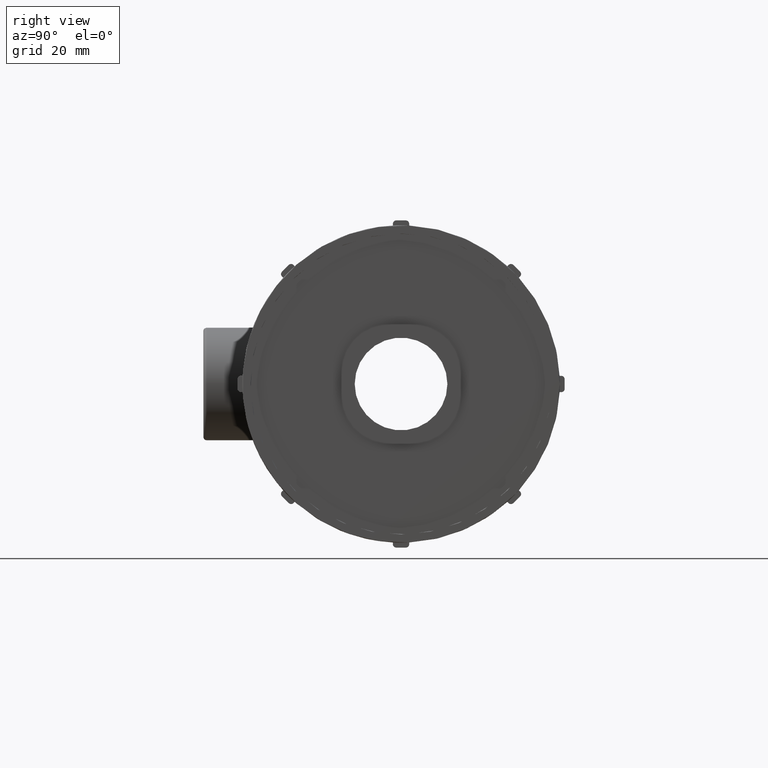
[diagram: clean part render]
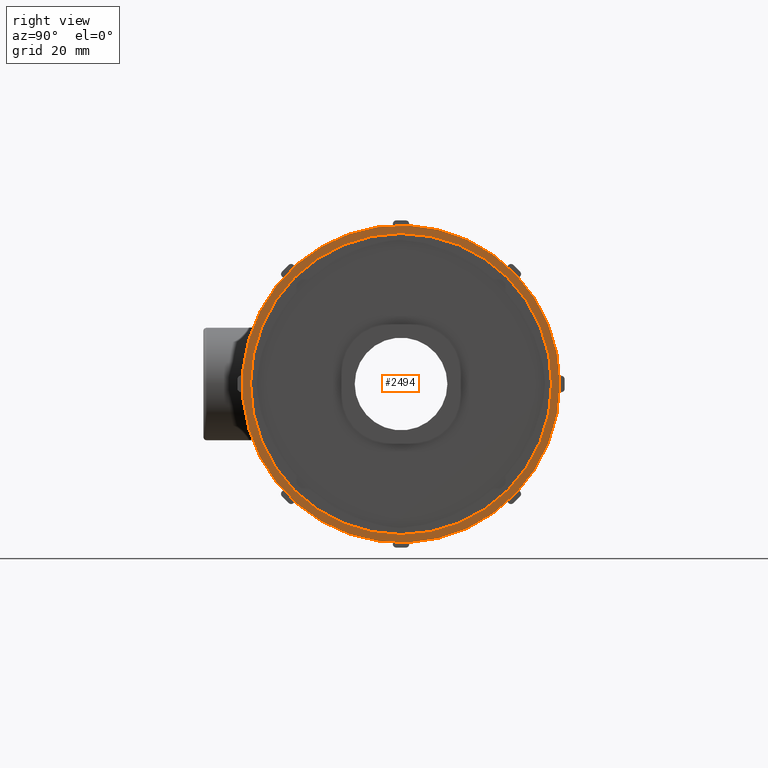
[diagram: same view with one face highlighted and labeled with its STEP entity id]
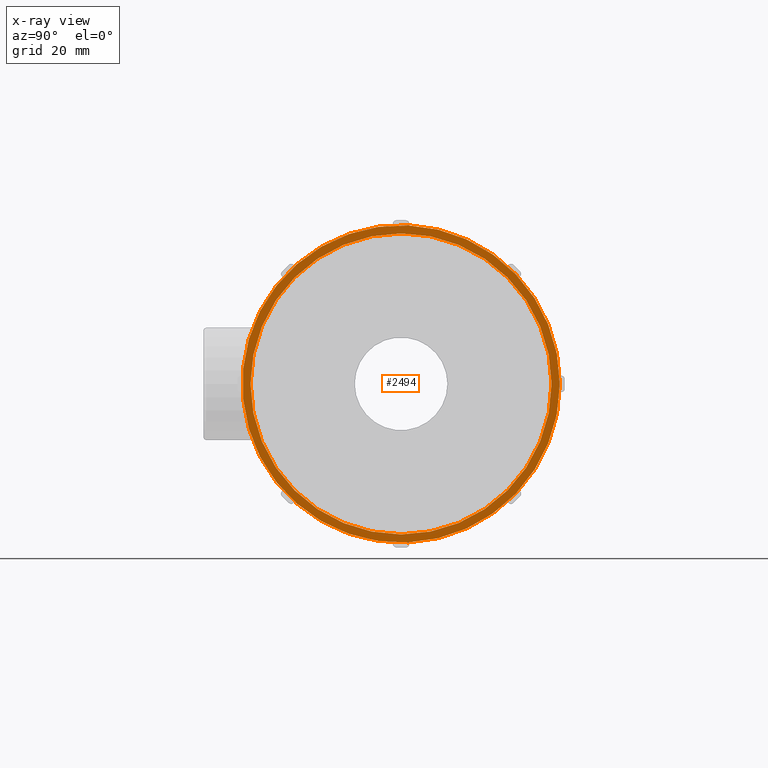
[diagram: x-ray of the same camera — body ghosted, the highlighted face saturated]
A machine part, right view. The second image highlights one B-rep face of the part: STEP entity #2494.
The next image is the same camera in x-ray: the body ghosted, the highlighted face saturated — about 0% of this face is hidden behind the body in this view.
In plain terms, the highlighted planar face has unit normal (1, 0, 0).
Its self-contained STEP definition (entity closure, byte-faithful):
#297=PLANE('',#2801);
#450=CIRCLE('',#2757,46.56);
#475=CIRCLE('',#2802,44.16);
#553=FACE_BOUND('',#925,.T.);
#722=FACE_OUTER_BOUND('',#924,.T.);
#924=EDGE_LOOP('',(#2240));
#925=EDGE_LOOP('',(#2241));
#1213=VERTEX_POINT('',#4756);
#1233=VERTEX_POINT('',#4911);
#1536=EDGE_CURVE('',#1213,#1213,#450,.T.);
#1577=EDGE_CURVE('',#1233,#1233,#475,.T.);
#2240=ORIENTED_EDGE('',*,*,#1536,.T.);
#2241=ORIENTED_EDGE('',*,*,#1577,.F.);
#2494=ADVANCED_FACE('',(#722,#553),#297,.T.);
#2757=AXIS2_PLACEMENT_3D('',#4757,#3414,#3415);
#2801=AXIS2_PLACEMENT_3D('',#4910,#3512,#3513);
#2802=AXIS2_PLACEMENT_3D('',#4912,#3514,#3515);
#3414=DIRECTION('center_axis',(1.,0.,0.));
#3415=DIRECTION('ref_axis',(0.,0.,-1.));
#3512=DIRECTION('center_axis',(1.,0.,0.));
#3513=DIRECTION('ref_axis',(0.,0.,-1.));
#3514=DIRECTION('center_axis',(1.,0.,0.));
#3515=DIRECTION('ref_axis',(0.,0.,-1.));
#4756=CARTESIAN_POINT('',(81.975,46.56,0.));
#4757=CARTESIAN_POINT('Origin',(81.975,0.,0.));
#4910=CARTESIAN_POINT('Origin',(81.975,44.16,0.));
#4911=CARTESIAN_POINT('',(81.975,44.16,0.));
#4912=CARTESIAN_POINT('Origin',(81.975,0.,0.));